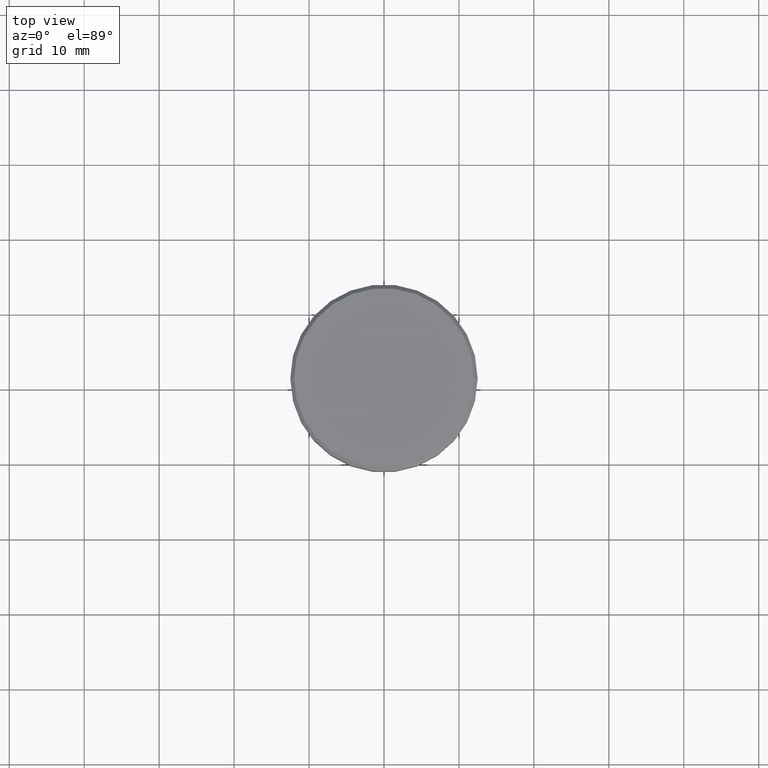
[diagram: clean part render]
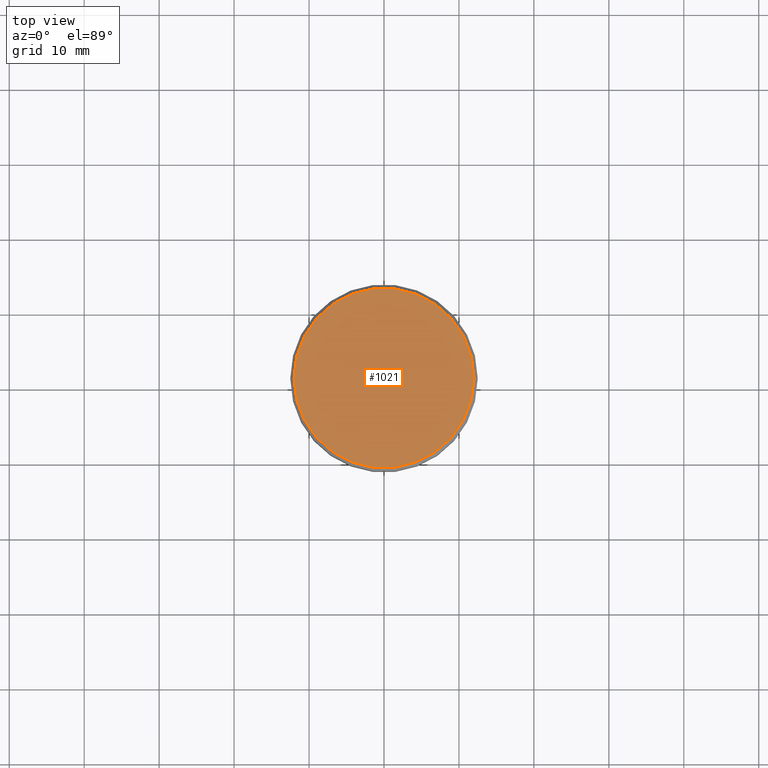
[diagram: same view with one face highlighted and labeled with its STEP entity id]
A machine part, top view. The second image highlights one B-rep face of the part: STEP entity #1021.
In plain terms, the highlighted planar face has unit normal (0, -0, 1).
Its self-contained STEP definition (entity closure, byte-faithful):
#6 = CARTESIAN_POINT ( 'NONE',  ( -11.99999999999998224, 0.000000000000000000, 0.000000000000000000 ) ) ;
#56 = DIRECTION ( 'NONE',  ( 1.000000000000000000, 0.000000000000000000, 0.000000000000000000 ) ) ;
#62 = DIRECTION ( 'NONE',  ( -0.000000000000000000, -0.000000000000000000, 1.000000000000000000 ) ) ;
#164 = ORIENTED_EDGE ( 'NONE', *, *, #380, .T. ) ;
#195 = VERTEX_POINT ( 'NONE', #801 ) ;
#240 = CARTESIAN_POINT ( 'NONE',  ( 0.000000000000000000, 0.000000000000000000, 0.000000000000000000 ) ) ;
#322 = FACE_OUTER_BOUND ( 'NONE', #1070, .T. ) ;
#338 = DIRECTION ( 'NONE',  ( 0.000000000000000000, -0.000000000000000000, 1.000000000000000000 ) ) ;
#354 = CARTESIAN_POINT ( 'NONE',  ( 0.000000000000000000, 0.000000000000000000, 0.000000000000000000 ) ) ;
#365 = CIRCLE ( 'NONE', #1167, 11.99999999999998224 ) ;
#380 = EDGE_CURVE ( 'NONE', #195, #606, #1148, .T. ) ;
#474 = ORIENTED_EDGE ( 'NONE', *, *, #1077, .T. ) ;
#534 = DIRECTION ( 'NONE',  ( -0.000000000000000000, -0.000000000000000000, 1.000000000000000000 ) ) ;
#606 = VERTEX_POINT ( 'NONE', #6 ) ;
#697 = AXIS2_PLACEMENT_3D ( 'NONE', #354, #534, #727 ) ;
#727 = DIRECTION ( 'NONE',  ( 1.000000000000000000, 0.000000000000000000, 0.000000000000000000 ) ) ;
#758 = AXIS2_PLACEMENT_3D ( 'NONE', #240, #338, #785 ) ;
#785 = DIRECTION ( 'NONE',  ( 1.000000000000000000, 0.000000000000000000, 0.000000000000000000 ) ) ;
#790 = PLANE ( 'NONE',  #758 ) ;
#801 = CARTESIAN_POINT ( 'NONE',  ( 11.99999999999998224, 1.500192328955506354E-15, 0.000000000000000000 ) ) ;
#880 = CARTESIAN_POINT ( 'NONE',  ( 0.000000000000000000, 0.000000000000000000, 0.000000000000000000 ) ) ;
#1021 = ADVANCED_FACE ( 'NONE', ( #322 ), #790, .T. ) ;
#1070 = EDGE_LOOP ( 'NONE', ( #474, #164 ) ) ;
#1077 = EDGE_CURVE ( 'NONE', #606, #195, #365, .T. ) ;
#1148 = CIRCLE ( 'NONE', #697, 11.99999999999998224 ) ;
#1167 = AXIS2_PLACEMENT_3D ( 'NONE', #880, #62, #56 ) ;